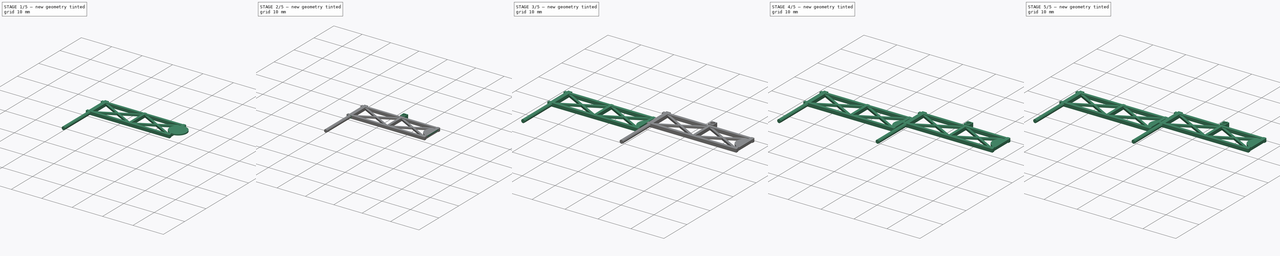
[diagram: build sequence overview — one tinted view per stage of 5, left to right]
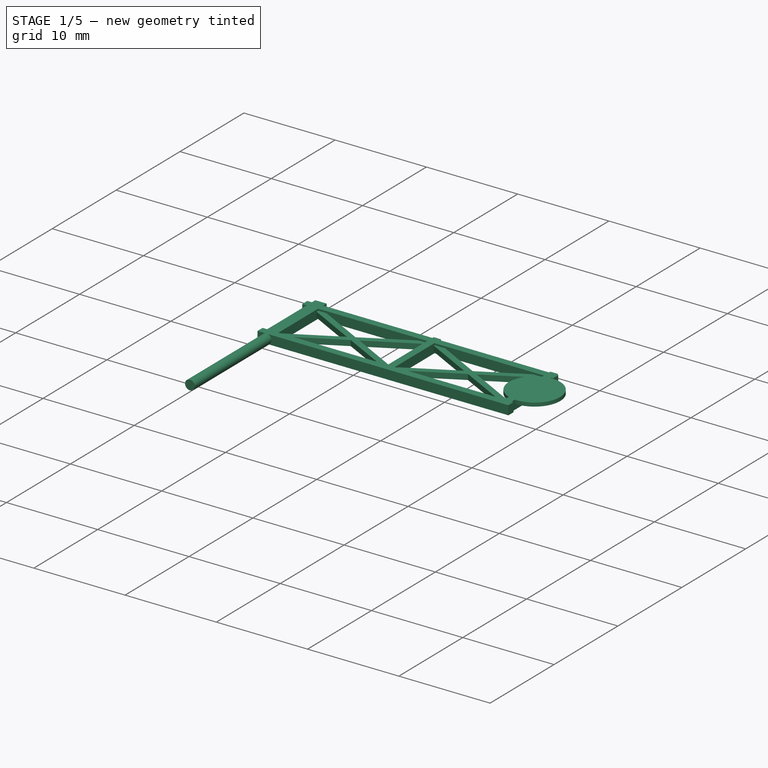
[diagram: stage 1 of 5 — iso view after this stage's code; geometry added in this stage tinted green]
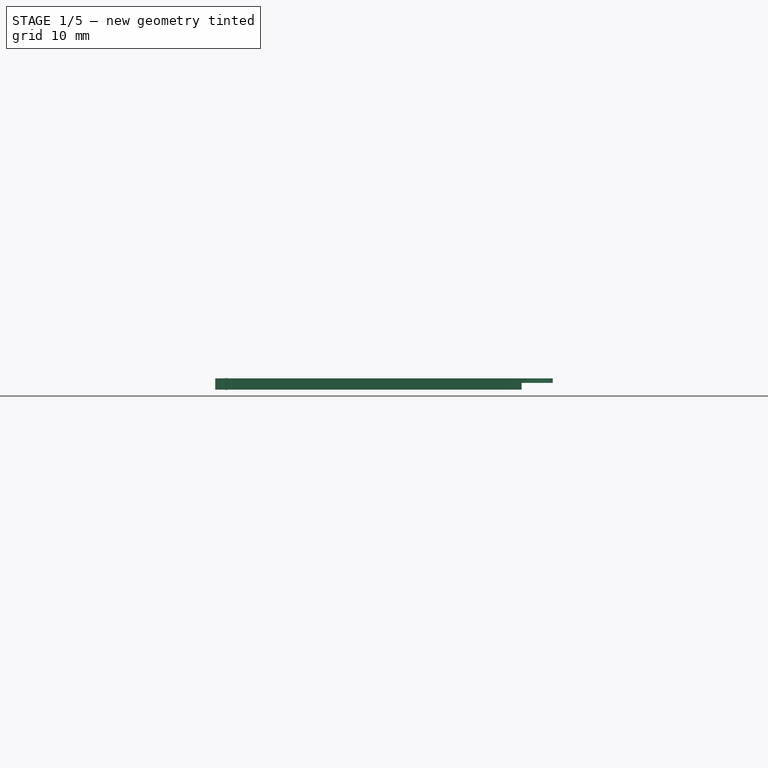
[diagram: stage 1 of 5 — front view after this stage's code; geometry added in this stage tinted green]
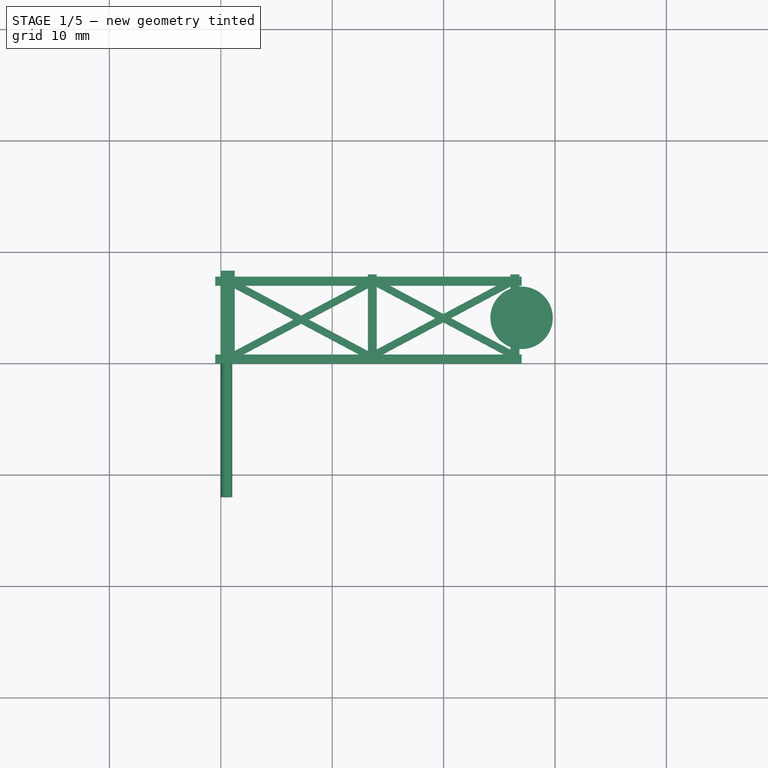
[diagram: stage 1 of 5 — top view after this stage's code; geometry added in this stage tinted green]
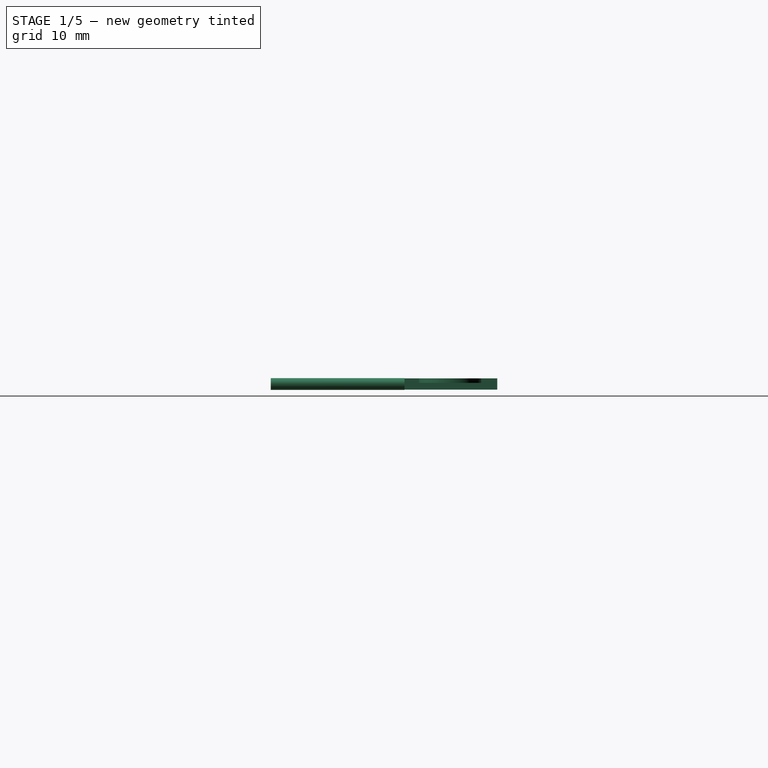
[diagram: stage 1 of 5 — right view after this stage's code; geometry added in this stage tinted green]
FCSTD DOCUMENT  (FreeCAD 0.18R16131 (Git))
Label: Level crossing gates v2 n gauge
License: All rights reserved
LicenseURL: http://en.wikipedia.org/wiki/All_rights_reserved
objects: PartDesign::AdditiveBox×22, PartDesign::LinearPattern×12, PartDesign::AdditiveCylinder×8, Sketcher::SketchObject×4, PartDesign::Pad×4, PartDesign::SubtractiveCylinder×4, PartDesign::SubtractiveBox×4, PartDesign::Body×4, PartDesign::AdditiveSphere×2
note: 108 computed .brp shape members not serialized (recipe doc carries the construction recipe); baked Part::Feature solids carry a one-line shape summary decoded from their .brp

FEATURE [PartDesign::Body] Body002
  Group = -> [Sketch002,Pad002,Box014,LinearPattern006,Box018,Box013,Box017,LinearPattern007,Box015,LinearPattern008,Cylinder006,Cylinder007,Cylinder008,Box016]
  Origin = -> Origin002
  Placement = pos=(30,-20,1) rot=(0,1,0;3.14159rad)
  Tip = -> Box016
FEATURE [Sketcher::SketchObject] Sketch003
  MapMode = 5
  Support = -> [XY_Plane003]
  sketch-geometry (4):
    g0: LineSegment StartX=0 StartY=0 StartZ=0 EndX=1.25 EndY=0 EndZ=0
    g1: LineSegment StartX=1.25 StartY=0 StartZ=0 EndX=1.25 EndY=8.33 EndZ=0
    g2: LineSegment StartX=1.25 StartY=8.33 StartZ=0 EndX=0 EndY=8.33 EndZ=0
    g3: LineSegment StartX=0 StartY=8.33 StartZ=0 EndX=0 EndY=0 EndZ=0
  constraints (11):
    c: Coincident(g0,g1)
    c: Coincident(g1,g2)
    c: Coincident(g2,g3)
    c: Coincident(g3,g0)
    c: Horizontal(g0)
    c: Horizontal(g2)
    c: Vertical(g1)
    c: Vertical(g3)
    c: Coincident(g0,g-1)
    c: DistanceY(g3,g3) = 8.33
    c: DistanceX(g0,g0) = 1.25
FEATURE [PartDesign::Pad] Pad003
  Length = 1
  Length2 = 100
  Profile = -> Sketch003
  Type = 0
FEATURE [PartDesign::AdditiveBox] Box019
  AttacherType = Attacher::AttachEngine3D
  AttachmentOffset = pos=(-0.5,0,0) rot=(0,0,1;0rad)
  BaseFeature = -> Pad003
  Height = 1
  Length = 27.5
  MapMode = 5
  Placement = pos=(-0.5,0,0) rot=(0,0,1;0rad)
  Support = -> [XY_Plane003]
  Width = 0.8
FEATURE [PartDesign::LinearPattern] LinearPattern009
  BaseFeature = -> Box019
  Direction = -> Y_Axis003
  Length = 7
  Occurrences = 2
  Originals = -> [Box019]
  Placement = pos=(-0.5,0,0) rot=(0,0,1;0rad)
FEATURE [PartDesign::AdditiveBox] Box022
  AttacherType = Attacher::AttachEngine3D
  AttachmentOffset = pos=(13.2,0,0) rot=(0,0,1;0rad)
  BaseFeature = -> LinearPattern009
  Height = 1
  Length = 0.8
  MapMode = 5
  Placement = pos=(13.2,0,0) rot=(0,0,1;0rad)
  Support = -> [XY_Plane003]
  Width = 8
FEATURE [PartDesign::AdditiveBox] Box021
  AttacherType = Attacher::AttachEngine3D
  AttachmentOffset = pos=(26,0,0) rot=(0,0,1;0rad)
  BaseFeature = -> Box022
  Height = 1
  Length = 0.8
  MapMode = 5
  Placement = pos=(26,0,0) rot=(0,0,1;0rad)
  Support = -> [XY_Plane003]
  Width = 8
FEATURE [PartDesign::AdditiveBox] Box020
  AttacherType = Attacher::AttachEngine3D
  AttachmentOffset = pos=(1,1,0.2) rot=(0,0,-1;1.0821rad)
  BaseFeature = -> Box021
  Height = 0.6
  Length = 0.65
  MapMode = 5
  Placement = pos=(1,1,0.2) rot=(0,0,-1;1.0821rad)
  Support = -> [XY_Plane003]
  Width = 14
FEATURE [PartDesign::LinearPattern] LinearPattern011
  BaseFeature = -> Box020
  Direction = -> X_Axis003
  Length = 12.5
  Occurrences = 2
  Originals = -> [Box020]
  Placement = pos=(1,1,0.2) rot=(0,0,-1;1.0821rad)
FEATURE [PartDesign::AdditiveBox] Box023
  AttacherType = Attacher::AttachEngine3D
  AttachmentOffset = pos=(13,0.5,0.2) rot=(0,0,1;1.0821rad)
  BaseFeature = -> LinearPattern011
  Height = 0.6
  Length = 0.65
  MapMode = 5
  Placement = pos=(13,0.5,0.2) rot=(0,0,1;1.0821rad)
  Support = -> [XY_Plane003]
  Width = 14
FEATURE [PartDesign::LinearPattern] LinearPattern010
  BaseFeature = -> Box023
  Direction = -> X_Axis003
  Length = 13
  Occurrences = 2
  Originals = -> [Box023]
  Placement = pos=(13,0.5,0.2) rot=(0,0,1;1.0821rad)
FEATURE [PartDesign::AdditiveCylinder] Cylinder010
  Angle = 360
  AttacherType = Attacher::AttachEngine3D
  AttachmentOffset = pos=(0.5,0.5,0) rot=(0,0,1;0rad)
  BaseFeature = -> LinearPattern010
  Height = 12
  MapMode = 5
  Placement = pos=(0.5,-1e-16,0.5) rot=(1,0,0;1.5708rad)
  Radius = 0.53
  Support = -> [XZ_Plane003]
FEATURE [PartDesign::AdditiveCylinder] Cylinder009
  Angle = 360
  AttacherType = Attacher::AttachEngine3D
  AttachmentOffset = pos=(27,4.1,0.6) rot=(0,0,1;0rad)
  BaseFeature = -> Cylinder010
  Height = 0.4
  MapMode = 5
  Placement = pos=(27,4.1,0.6) rot=(0,0,1;0rad)
  Radius = 2.8
  Support = -> [XY_Plane003]
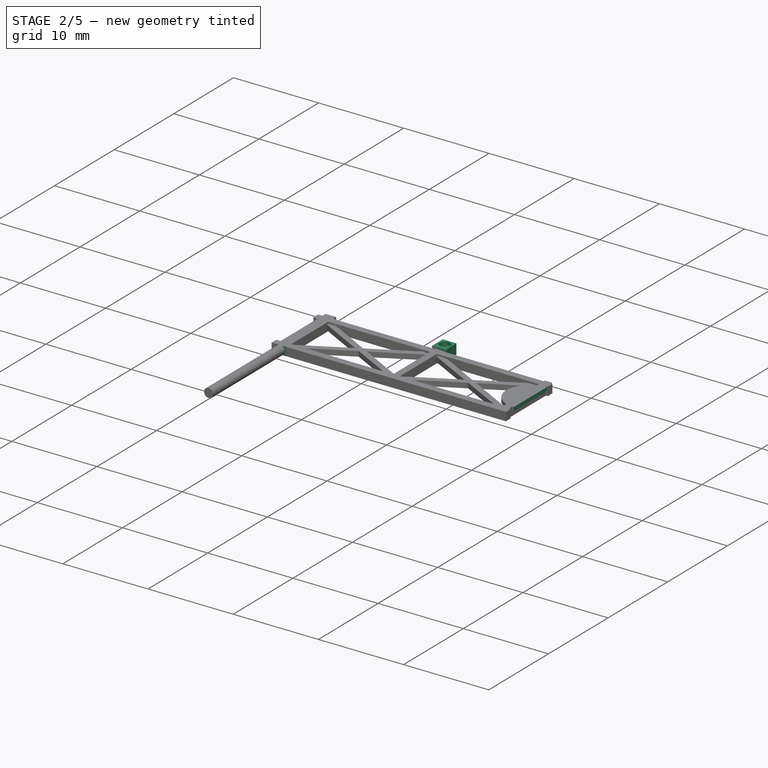
[diagram: stage 2 of 5 — iso view after this stage's code; geometry added in this stage tinted green]
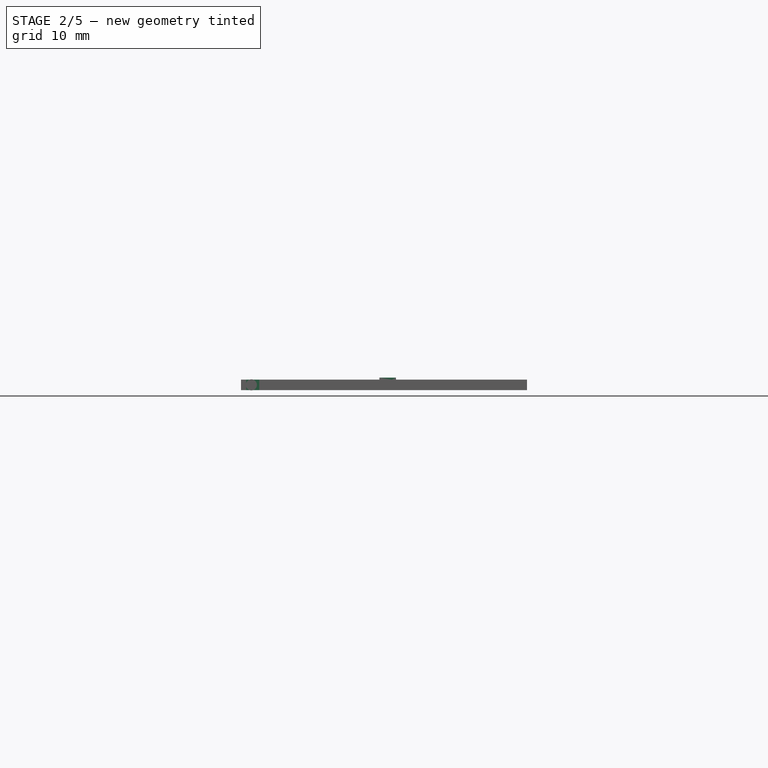
[diagram: stage 2 of 5 — front view after this stage's code; geometry added in this stage tinted green]
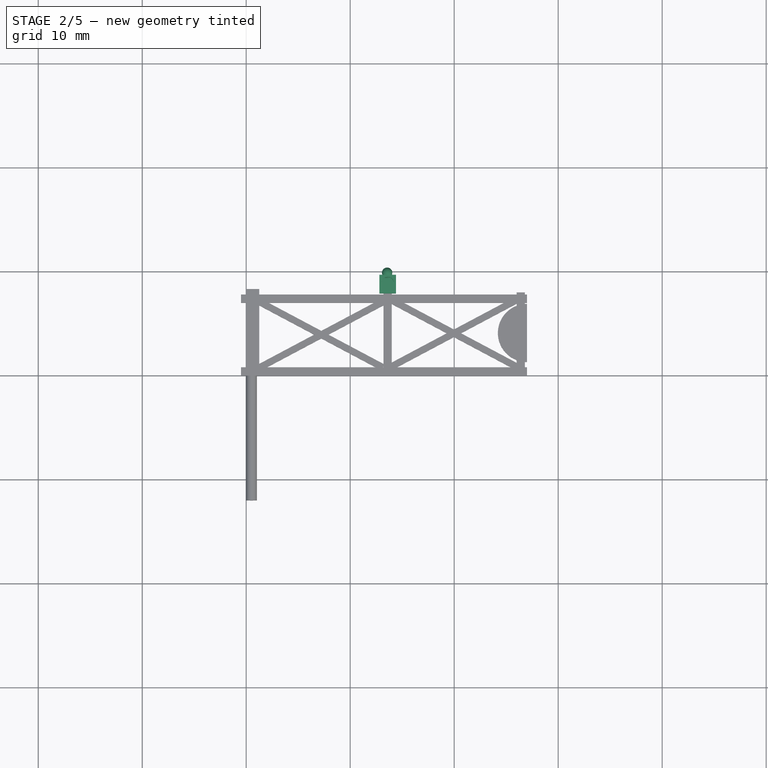
[diagram: stage 2 of 5 — top view after this stage's code; geometry added in this stage tinted green]
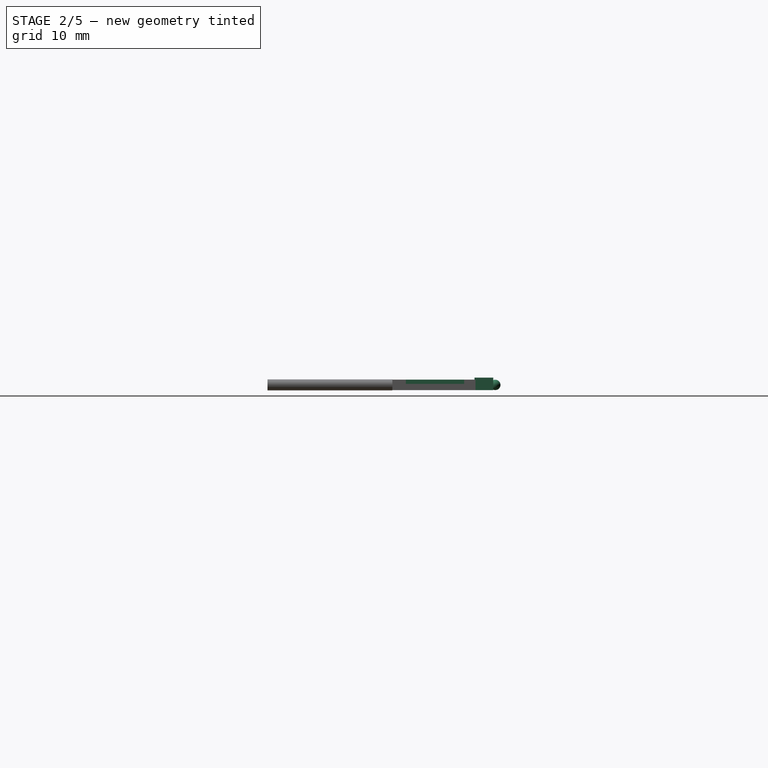
[diagram: stage 2 of 5 — right view after this stage's code; geometry added in this stage tinted green]
FEATURE [PartDesign::Body] Body001
  Group = -> [Sketch001,Pad001,Box007,LinearPattern003,Box010,Box009,Box008,LinearPattern005,Box011,LinearPattern004,Cylinder004,Cylinder003,Cylinder005,Box012]
  Origin = -> Origin001
  Placement = pos=(30,4,1) rot=(0,1,0;3.14159rad)
  Tip = -> Box012
FEATURE [Sketcher::SketchObject] Sketch002
  MapMode = 5
  Support = -> [XY_Plane002]
  sketch-geometry (4):
    g0: LineSegment StartX=0 StartY=0 StartZ=0 EndX=1.25 EndY=0 EndZ=0
    g1: LineSegment StartX=1.25 StartY=0 StartZ=0 EndX=1.25 EndY=8.33 EndZ=0
    g2: LineSegment StartX=1.25 StartY=8.33 StartZ=0 EndX=0 EndY=8.33 EndZ=0
    g3: LineSegment StartX=0 StartY=8.33 StartZ=0 EndX=0 EndY=0 EndZ=0
  constraints (11):
    c: Coincident(g0,g1)
    c: Coincident(g1,g2)
    c: Coincident(g2,g3)
    c: Coincident(g3,g0)
    c: Horizontal(g0)
    c: Horizontal(g2)
    c: Vertical(g1)
    c: Vertical(g3)
    c: Coincident(g0,g-1)
    c: DistanceY(g3,g3) = 8.33
    c: DistanceX(g0,g0) = 1.25
FEATURE [PartDesign::Pad] Pad002
  Length = 1
  Length2 = 100
  Profile = -> Sketch002
  Type = 0
FEATURE [PartDesign::AdditiveBox] Box014
  AttacherType = Attacher::AttachEngine3D
  AttachmentOffset = pos=(-0.5,0,0) rot=(0,0,1;0rad)
  BaseFeature = -> Pad002
  Height = 1
  Length = 27.5
  MapMode = 5
  Placement = pos=(-0.5,0,0) rot=(0,0,1;0rad)
  Support = -> [XY_Plane002]
  Width = 0.8
FEATURE [PartDesign::LinearPattern] LinearPattern006
  BaseFeature = -> Box014
  Direction = -> Y_Axis002
  Length = 7
  Occurrences = 2
  Originals = -> [Box014]
  Placement = pos=(-0.5,0,0) rot=(0,0,1;0rad)
FEATURE [PartDesign::AdditiveBox] Box018
  AttacherType = Attacher::AttachEngine3D
  AttachmentOffset = pos=(13.2,0,0) rot=(0,0,1;0rad)
  BaseFeature = -> LinearPattern006
  Height = 1
  Length = 0.8
  MapMode = 5
  Placement = pos=(13.2,0,0) rot=(0,0,1;0rad)
  Support = -> [XY_Plane002]
  Width = 8
FEATURE [PartDesign::AdditiveBox] Box013
  AttacherType = Attacher::AttachEngine3D
  AttachmentOffset = pos=(26,0,0) rot=(0,0,1;0rad)
  BaseFeature = -> Box018
  Height = 1
  Length = 0.8
  MapMode = 5
  Placement = pos=(26,0,0) rot=(0,0,1;0rad)
  Support = -> [XY_Plane002]
  Width = 8
FEATURE [PartDesign::AdditiveBox] Box017
  AttacherType = Attacher::AttachEngine3D
  AttachmentOffset = pos=(1,1,0.2) rot=(0,0,-1;1.0821rad)
  BaseFeature = -> Box013
  Height = 0.6
  Length = 0.65
  MapMode = 5
  Placement = pos=(1,1,0.2) rot=(0,0,-1;1.0821rad)
  Support = -> [XY_Plane002]
  Width = 14
FEATURE [PartDesign::LinearPattern] LinearPattern007
  BaseFeature = -> Box017
  Direction = -> X_Axis002
  Length = 12.5
  Occurrences = 2
  Originals = -> [Box017]
  Placement = pos=(1,1,0.2) rot=(0,0,-1;1.0821rad)
FEATURE [PartDesign::AdditiveBox] Box025
  AttacherType = Attacher::AttachEngine3D
  AttachmentOffset = pos=(12.8,7.9,0) rot=(0,0,1;0rad)
  BaseFeature = -> Cylinder009
  Height = 1.2
  Length = 1.6
  MapMode = 5
  Placement = pos=(12.8,7.9,0) rot=(0,0,1;0rad)
  Support = -> [XY_Plane003]
  Width = 1.8
FEATURE [PartDesign::SubtractiveCylinder] Cylinder011
  Angle = 360
  AttacherType = Attacher::AttachEngine3D
  AttachmentOffset = pos=(0.8,1,-0.5) rot=(0,0,1;0rad)
  BaseFeature = -> Box025
  Height = 2
  MapMode = 5
  Placement = pos=(13.6,8.9,0.5) rot=(0,0,1;0rad)
  Radius = 0.6
  Support = -> [Box025]
FEATURE [PartDesign::SubtractiveBox] Box024
  AttacherType = Attacher::AttachEngine3D
  AttachmentOffset = pos=(27,1,0) rot=(0,0,1;0rad)
  BaseFeature = -> Cylinder011
  Height = 1
  Length = 4
  MapMode = 5
  Placement = pos=(27,1,0) rot=(0,0,1;0rad)
  Support = -> [XY_Plane003]
  Width = 6
FEATURE [PartDesign::AdditiveSphere] Sphere001
  Angle1 = -90
  Angle2 = 90
  Angle3 = 360
  AttacherType = Attacher::AttachEngine3D
  AttachmentOffset = pos=(13.55,9.9,0.5) rot=(0,0,1;0rad)
  BaseFeature = -> Box024
  MapMode = 2
  Placement = pos=(13.55,9.9,0.5) rot=(0,0,1;0rad)
  Radius = 0.5
  Support = -> [X_Axis003]
FEATURE [PartDesign::Body] Body003
  Group = -> [Sketch003,Pad003,Box019,LinearPattern009,Box022,Box021,Box020,LinearPattern011,Box023,LinearPattern010,Cylinder010,Cylinder009,Box025,Cylinder011,Box024,Sphere001]
  Origin = -> Origin003
  Placement = pos=(0,-24,0) rot=(0,0,1;0rad)
  Tip = -> Sphere001
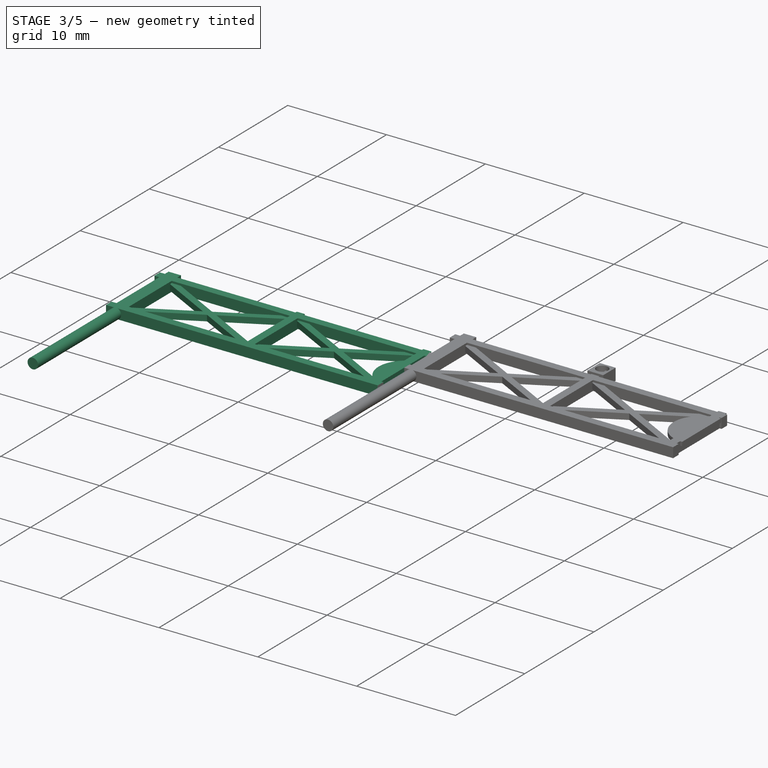
[diagram: stage 3 of 5 — iso view after this stage's code; geometry added in this stage tinted green]
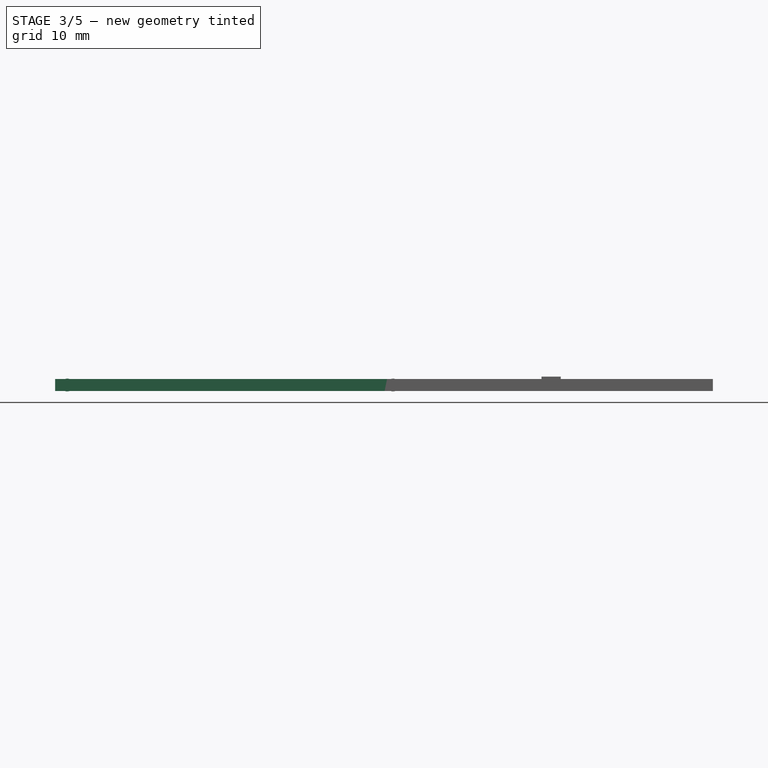
[diagram: stage 3 of 5 — front view after this stage's code; geometry added in this stage tinted green]
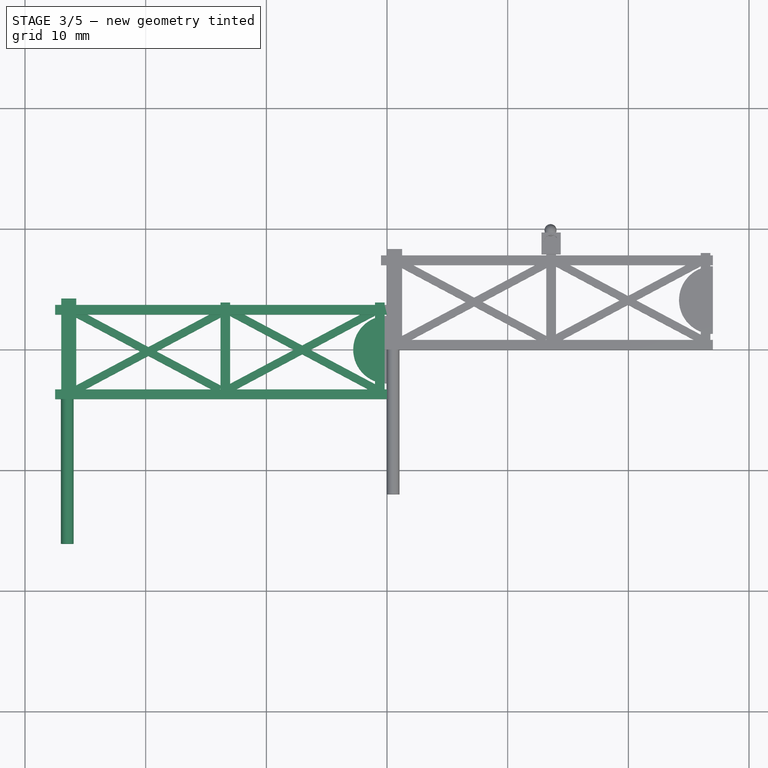
[diagram: stage 3 of 5 — top view after this stage's code; geometry added in this stage tinted green]
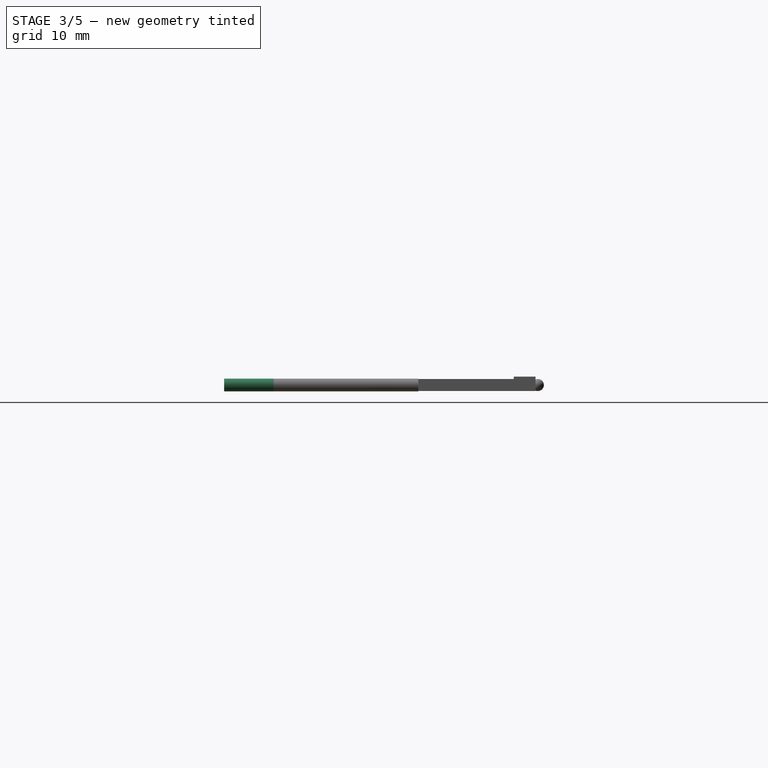
[diagram: stage 3 of 5 — right view after this stage's code; geometry added in this stage tinted green]
FEATURE [PartDesign::Body] Body
  Group = -> [Sketch,Pad,Box,LinearPattern,Box001,Box002,Box003,LinearPattern001,Box004,LinearPattern002,Cylinder,Cylinder001,Box005,Cylinder002,Box006,Sphere]
  Origin = -> Origin
  Tip = -> Sphere
FEATURE [Sketcher::SketchObject] Sketch001
  MapMode = 5
  Support = -> [XY_Plane001]
  sketch-geometry (4):
    g0: LineSegment StartX=0 StartY=0 StartZ=0 EndX=1.25 EndY=0 EndZ=0
    g1: LineSegment StartX=1.25 StartY=0 StartZ=0 EndX=1.25 EndY=8.33 EndZ=0
    g2: LineSegment StartX=1.25 StartY=8.33 StartZ=0 EndX=0 EndY=8.33 EndZ=0
    g3: LineSegment StartX=0 StartY=8.33 StartZ=0 EndX=0 EndY=0 EndZ=0
  constraints (11):
    c: Coincident(g0,g1)
    c: Coincident(g1,g2)
    c: Coincident(g2,g3)
    c: Coincident(g3,g0)
    c: Horizontal(g0)
    c: Horizontal(g2)
    c: Vertical(g1)
    c: Vertical(g3)
    c: Coincident(g0,g-1)
    c: DistanceY(g3,g3) = 8.33
    c: DistanceX(g0,g0) = 1.25
FEATURE [PartDesign::Pad] Pad001
  Length = 1
  Length2 = 100
  Profile = -> Sketch001
  Type = 0
FEATURE [PartDesign::AdditiveBox] Box007
  AttacherType = Attacher::AttachEngine3D
  AttachmentOffset = pos=(-0.5,0,0) rot=(0,0,1;0rad)
  BaseFeature = -> Pad001
  Height = 1
  Length = 27.5
  MapMode = 5
  Placement = pos=(-0.5,0,0) rot=(0,0,1;0rad)
  Support = -> [XY_Plane001]
  Width = 0.8
FEATURE [PartDesign::LinearPattern] LinearPattern003
  BaseFeature = -> Box007
  Direction = -> Y_Axis001
  Length = 7
  Occurrences = 2
  Originals = -> [Box007]
  Placement = pos=(-0.5,0,0) rot=(0,0,1;0rad)
FEATURE [PartDesign::AdditiveBox] Box010
  AttacherType = Attacher::AttachEngine3D
  AttachmentOffset = pos=(13.2,0,0) rot=(0,0,1;0rad)
  BaseFeature = -> LinearPattern003
  Height = 1
  Length = 0.8
  MapMode = 5
  Placement = pos=(13.2,0,0) rot=(0,0,1;0rad)
  Support = -> [XY_Plane001]
  Width = 8
FEATURE [PartDesign::AdditiveBox] Box009
  AttacherType = Attacher::AttachEngine3D
  AttachmentOffset = pos=(26,0,0) rot=(0,0,1;0rad)
  BaseFeature = -> Box010
  Height = 1
  Length = 0.8
  MapMode = 5
  Placement = pos=(26,0,0) rot=(0,0,1;0rad)
  Support = -> [XY_Plane001]
  Width = 8
FEATURE [PartDesign::AdditiveBox] Box008
  AttacherType = Attacher::AttachEngine3D
  AttachmentOffset = pos=(1,1,0.2) rot=(0,0,-1;1.0821rad)
  BaseFeature = -> Box009
  Height = 0.6
  Length = 0.65
  MapMode = 5
  Placement = pos=(1,1,0.2) rot=(0,0,-1;1.0821rad)
  Support = -> [XY_Plane001]
  Width = 14
FEATURE [PartDesign::AdditiveBox] Box015
  AttacherType = Attacher::AttachEngine3D
  AttachmentOffset = pos=(13,0.5,0.2) rot=(0,0,1;1.0821rad)
  BaseFeature = -> LinearPattern007
  Height = 0.6
  Length = 0.65
  MapMode = 5
  Placement = pos=(13,0.5,0.2) rot=(0,0,1;1.0821rad)
  Support = -> [XY_Plane002]
  Width = 14
FEATURE [PartDesign::LinearPattern] LinearPattern008
  BaseFeature = -> Box015
  Direction = -> X_Axis002
  Length = 13
  Occurrences = 2
  Originals = -> [Box015]
  Placement = pos=(13,0.5,0.2) rot=(0,0,1;1.0821rad)
FEATURE [PartDesign::AdditiveCylinder] Cylinder006
  Angle = 360
  AttacherType = Attacher::AttachEngine3D
  AttachmentOffset = pos=(0.5,0.5,0) rot=(0,0,1;0rad)
  BaseFeature = -> LinearPattern008
  Height = 12
  MapMode = 5
  Placement = pos=(0.5,-1e-16,0.5) rot=(1,0,0;1.5708rad)
  Radius = 0.53
  Support = -> [XZ_Plane002]
FEATURE [PartDesign::AdditiveCylinder] Cylinder007
  Angle = 360
  AttacherType = Attacher::AttachEngine3D
  AttachmentOffset = pos=(27,4.1,0) rot=(0,0,1;0rad)
  BaseFeature = -> Cylinder006
  Height = 0.4
  MapMode = 5
  Placement = pos=(27,4.1,0) rot=(0,0,1;0rad)
  Radius = 2.8
  Support = -> [XY_Plane002]
FEATURE [PartDesign::SubtractiveCylinder] Cylinder008
  Angle = 360
  AttacherType = Attacher::AttachEngine3D
  AttachmentOffset = pos=(0.8,1,-0.5) rot=(0,0,1;0rad)
  BaseFeature = -> Cylinder007
  Height = 2
  MapMode = 5
  Placement = pos=(13.6,8.9,0.5) rot=(0,0,1;0rad)
  Radius = 0.6
FEATURE [PartDesign::SubtractiveBox] Box016
  AttacherType = Attacher::AttachEngine3D
  AttachmentOffset = pos=(0.2,-3,0) rot=(0,0,1;0rad)
  BaseFeature = -> Cylinder008
  Height = 1
  Length = 4.1
  MapMode = 5
  Placement = pos=(0.2,-3,0) rot=(0,0,1;0rad)
  Support = -> [XY_Plane002]
  Width = 6
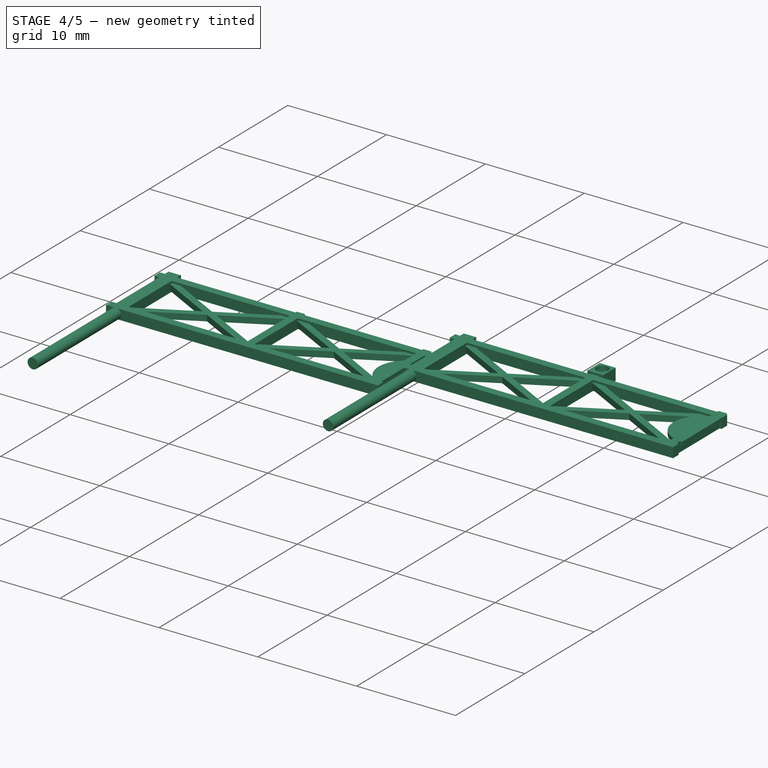
[diagram: stage 4 of 5 — iso view after this stage's code; geometry added in this stage tinted green]
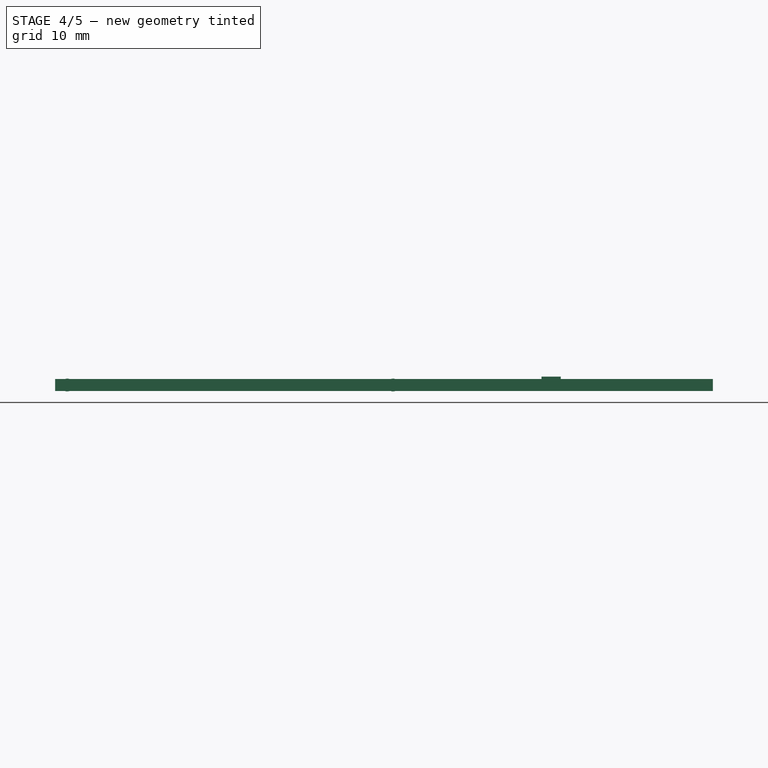
[diagram: stage 4 of 5 — front view after this stage's code; geometry added in this stage tinted green]
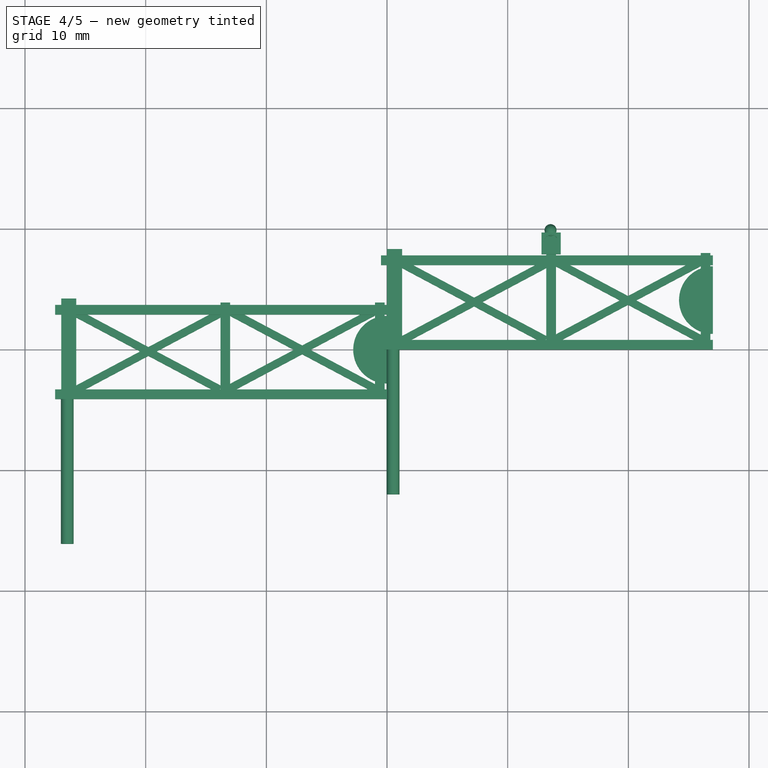
[diagram: stage 4 of 5 — top view after this stage's code; geometry added in this stage tinted green]
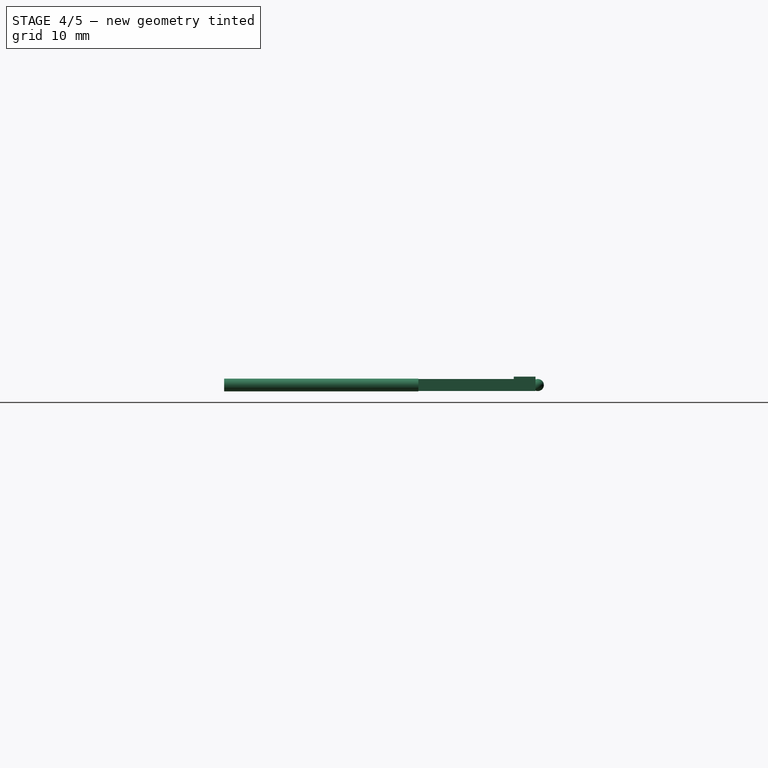
[diagram: stage 4 of 5 — right view after this stage's code; geometry added in this stage tinted green]
FEATURE [Sketcher::SketchObject] Sketch
  MapMode = 5
  Support = -> [XY_Plane]
  sketch-geometry (4):
    g0: LineSegment StartX=0 StartY=0 StartZ=0 EndX=1.25 EndY=0 EndZ=0
    g1: LineSegment StartX=1.25 StartY=0 StartZ=0 EndX=1.25 EndY=8.33 EndZ=0
    g2: LineSegment StartX=1.25 StartY=8.33 StartZ=0 EndX=0 EndY=8.33 EndZ=0
    g3: LineSegment StartX=0 StartY=8.33 StartZ=0 EndX=0 EndY=0 EndZ=0
  constraints (11):
    c: Coincident(g0,g1)
    c: Coincident(g1,g2)
    c: Coincident(g2,g3)
    c: Coincident(g3,g0)
    c: Horizontal(g0)
    c: Horizontal(g2)
    c: Vertical(g1)
    c: Vertical(g3)
    c: Coincident(g0,g-1)
    c: DistanceY(g3,g3) = 8.33
    c: DistanceX(g0,g0) = 1.25
FEATURE [PartDesign::Pad] Pad
  Length = 1
  Length2 = 100
  Profile = -> Sketch
  Type = 0
FEATURE [PartDesign::AdditiveBox] Box
  AttacherType = Attacher::AttachEngine3D
  AttachmentOffset = pos=(-0.5,0,0) rot=(0,0,1;0rad)
  BaseFeature = -> Pad
  Height = 1
  Length = 27.5
  MapMode = 5
  Placement = pos=(-0.5,0,0) rot=(0,0,1;0rad)
  Support = -> [XY_Plane]
  Width = 0.8
FEATURE [PartDesign::LinearPattern] LinearPattern
  BaseFeature = -> Box
  Direction = -> Y_Axis
  Length = 7
  Occurrences = 2
  Originals = -> [Box]
  Placement = pos=(-0.5,0,0) rot=(0,0,1;0rad)
FEATURE [PartDesign::AdditiveBox] Box001
  AttacherType = Attacher::AttachEngine3D
  AttachmentOffset = pos=(13.2,0,0) rot=(0,0,1;0rad)
  BaseFeature = -> LinearPattern
  Height = 1
  Length = 0.8
  MapMode = 5
  Placement = pos=(13.2,0,0) rot=(0,0,1;0rad)
  Support = -> [XY_Plane]
  Width = 8
FEATURE [PartDesign::LinearPattern] LinearPattern005
  BaseFeature = -> Box008
  Direction = -> X_Axis001
  Length = 12.5
  Occurrences = 2
  Originals = -> [Box008]
  Placement = pos=(1,1,0.2) rot=(0,0,-1;1.0821rad)
FEATURE [PartDesign::AdditiveBox] Box011
  AttacherType = Attacher::AttachEngine3D
  AttachmentOffset = pos=(13,0.5,0.2) rot=(0,0,1;1.0821rad)
  BaseFeature = -> LinearPattern005
  Height = 0.6
  Length = 0.65
  MapMode = 5
  Placement = pos=(13,0.5,0.2) rot=(0,0,1;1.0821rad)
  Support = -> [XY_Plane001]
  Width = 14
FEATURE [PartDesign::LinearPattern] LinearPattern004
  BaseFeature = -> Box011
  Direction = -> X_Axis001
  Length = 13
  Occurrences = 2
  Originals = -> [Box011]
  Placement = pos=(13,0.5,0.2) rot=(0,0,1;1.0821rad)
FEATURE [PartDesign::AdditiveCylinder] Cylinder004
  Angle = 360
  AttacherType = Attacher::AttachEngine3D
  AttachmentOffset = pos=(0.5,0.5,0) rot=(0,0,1;0rad)
  BaseFeature = -> LinearPattern004
  Height = 12
  MapMode = 5
  Placement = pos=(0.5,-1e-16,0.5) rot=(1,0,0;1.5708rad)
  Radius = 0.53
  Support = -> [XZ_Plane001]
FEATURE [PartDesign::AdditiveCylinder] Cylinder003
  Angle = 360
  AttacherType = Attacher::AttachEngine3D
  AttachmentOffset = pos=(27,4.1,0) rot=(0,0,1;0rad)
  BaseFeature = -> Cylinder004
  Height = 0.4
  MapMode = 5
  Placement = pos=(27,4.1,0) rot=(0,0,1;0rad)
  Radius = 2.8
  Support = -> [XY_Plane001]
FEATURE [PartDesign::SubtractiveCylinder] Cylinder005
  Angle = 360
  AttacherType = Attacher::AttachEngine3D
  AttachmentOffset = pos=(0.8,1,-0.5) rot=(0,0,1;0rad)
  BaseFeature = -> Cylinder003
  Height = 2
  MapMode = 5
  Placement = pos=(13.6,8.9,0.5) rot=(0,0,1;0rad)
  Radius = 0.6
FEATURE [PartDesign::SubtractiveBox] Box012
  AttacherType = Attacher::AttachEngine3D
  AttachmentOffset = pos=(0.2,-3,0) rot=(0,0,1;0rad)
  BaseFeature = -> Cylinder005
  Height = 1
  Length = 4.1
  MapMode = 5
  Placement = pos=(0.2,-3,0) rot=(0,0,1;0rad)
  Support = -> [XY_Plane001]
  Width = 6
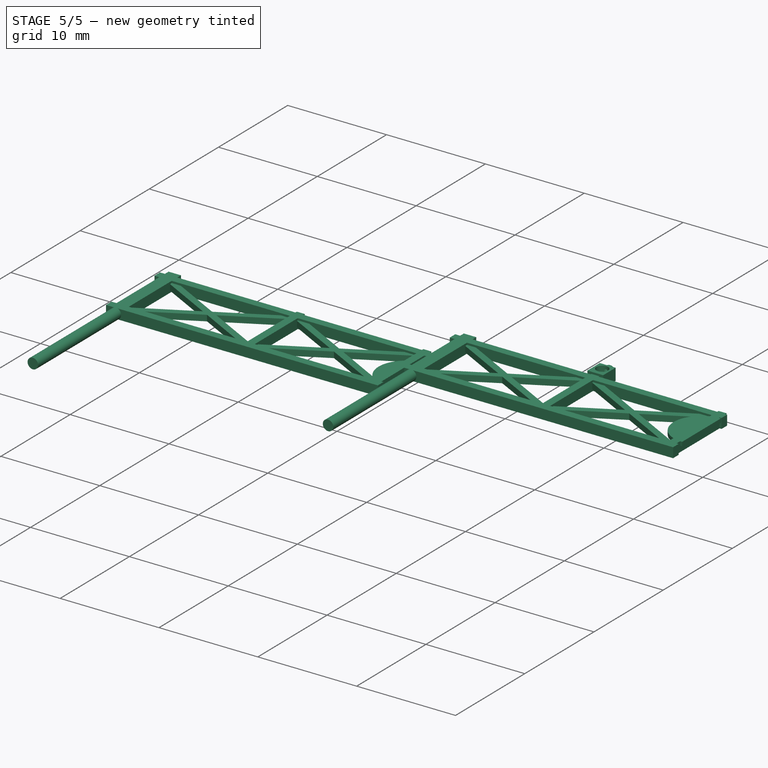
[diagram: stage 5 of 5 — iso view after this stage's code; geometry added in this stage tinted green]
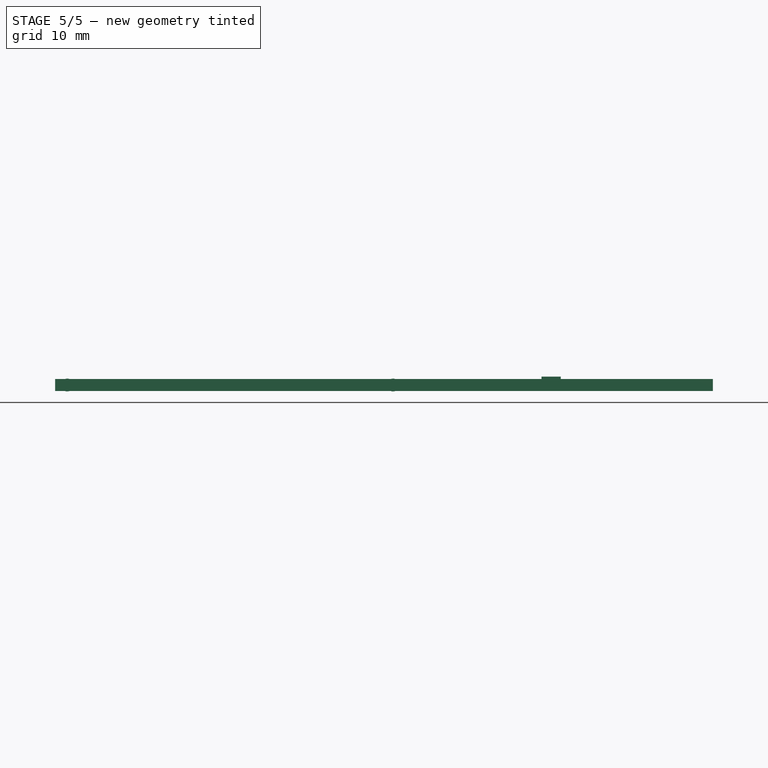
[diagram: stage 5 of 5 — front view after this stage's code; geometry added in this stage tinted green]
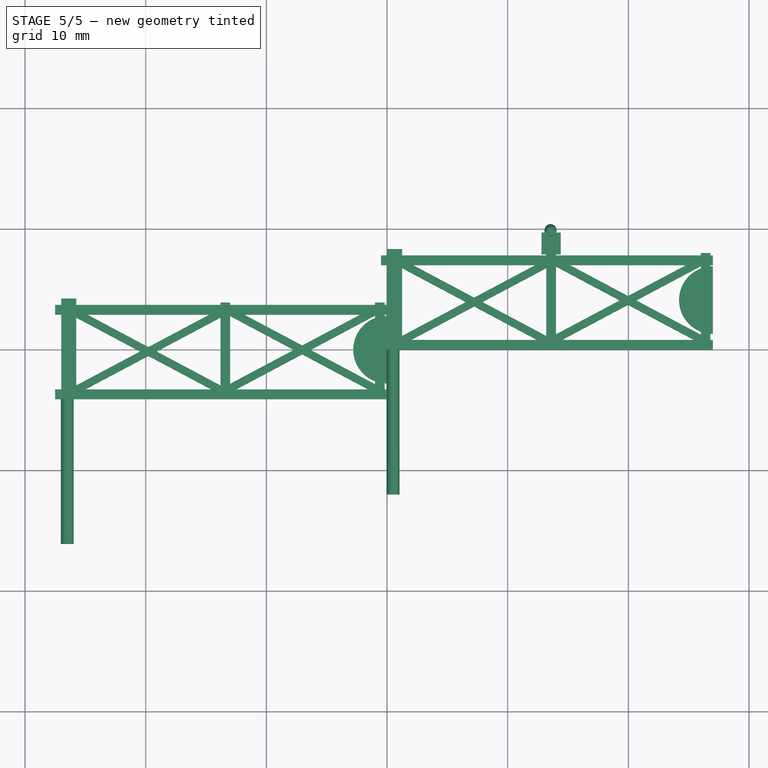
[diagram: stage 5 of 5 — top view after this stage's code; geometry added in this stage tinted green]
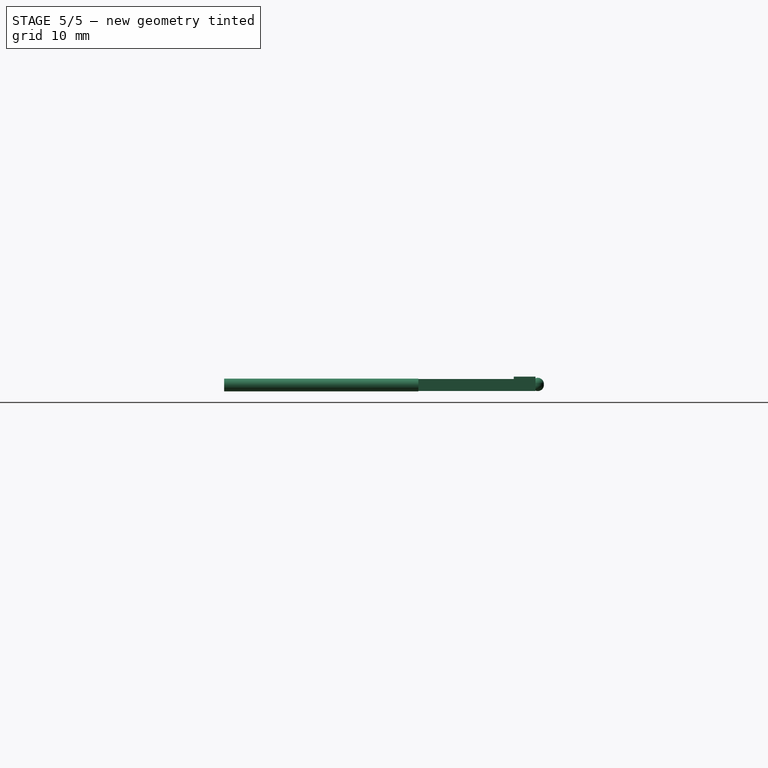
[diagram: stage 5 of 5 — right view after this stage's code; geometry added in this stage tinted green]
FEATURE [PartDesign::AdditiveBox] Box002
  AttacherType = Attacher::AttachEngine3D
  AttachmentOffset = pos=(26,0,0) rot=(0,0,1;0rad)
  BaseFeature = -> Box001
  Height = 1
  Length = 0.8
  MapMode = 5
  Placement = pos=(26,0,0) rot=(0,0,1;0rad)
  Support = -> [XY_Plane]
  Width = 8
FEATURE [PartDesign::AdditiveBox] Box003
  AttacherType = Attacher::AttachEngine3D
  AttachmentOffset = pos=(1,1,0.2) rot=(0,0,-1;1.0821rad)
  BaseFeature = -> Box002
  Height = 0.6
  Length = 0.65
  MapMode = 5
  Placement = pos=(1,1,0.2) rot=(0,0,-1;1.0821rad)
  Support = -> [XY_Plane]
  Width = 14
FEATURE [PartDesign::LinearPattern] LinearPattern001
  BaseFeature = -> Box003
  Direction = -> X_Axis
  Length = 12.5
  Occurrences = 2
  Originals = -> [Box003]
  Placement = pos=(1,1,0.2) rot=(0,0,-1;1.0821rad)
FEATURE [PartDesign::AdditiveBox] Box004
  AttacherType = Attacher::AttachEngine3D
  AttachmentOffset = pos=(13,0.5,0.2) rot=(0,0,1;1.0821rad)
  BaseFeature = -> LinearPattern001
  Height = 0.6
  Length = 0.65
  MapMode = 5
  Placement = pos=(13,0.5,0.2) rot=(0,0,1;1.0821rad)
  Support = -> [XY_Plane]
  Width = 14
FEATURE [PartDesign::LinearPattern] LinearPattern002
  BaseFeature = -> Box004
  Direction = -> X_Axis
  Length = 13
  Occurrences = 2
  Originals = -> [Box004]
  Placement = pos=(13,0.5,0.2) rot=(0,0,1;1.0821rad)
FEATURE [PartDesign::AdditiveCylinder] Cylinder
  Angle = 360
  AttacherType = Attacher::AttachEngine3D
  AttachmentOffset = pos=(0.5,0.5,0) rot=(0,0,1;0rad)
  BaseFeature = -> LinearPattern002
  Height = 12
  MapMode = 5
  Placement = pos=(0.5,-1e-16,0.5) rot=(1,0,0;1.5708rad)
  Radius = 0.53
  Support = -> [XZ_Plane]
FEATURE [PartDesign::AdditiveCylinder] Cylinder001
  Angle = 360
  AttacherType = Attacher::AttachEngine3D
  AttachmentOffset = pos=(27,4.1,0.6) rot=(0,0,1;0rad)
  BaseFeature = -> Cylinder
  Height = 0.4
  MapMode = 5
  Placement = pos=(27,4.1,0.6) rot=(0,0,1;0rad)
  Radius = 2.8
  Support = -> [XY_Plane]
FEATURE [PartDesign::AdditiveBox] Box005
  AttacherType = Attacher::AttachEngine3D
  AttachmentOffset = pos=(12.8,7.9,0) rot=(0,0,1;0rad)
  BaseFeature = -> Cylinder001
  Height = 1.2
  Length = 1.6
  MapMode = 5
  Placement = pos=(12.8,7.9,0) rot=(0,0,1;0rad)
  Support = -> [XY_Plane]
  Width = 1.8
FEATURE [PartDesign::SubtractiveCylinder] Cylinder002
  Angle = 360
  AttacherType = Attacher::AttachEngine3D
  AttachmentOffset = pos=(0.8,1,-0.5) rot=(0,0,1;0rad)
  BaseFeature = -> Box005
  Height = 2
  MapMode = 5
  Placement = pos=(13.6,8.9,0.5) rot=(0,0,1;0rad)
  Radius = 0.6
  Support = -> [Box005]
FEATURE [PartDesign::SubtractiveBox] Box006
  AttacherType = Attacher::AttachEngine3D
  AttachmentOffset = pos=(27,1,0) rot=(0,0,1;0rad)
  BaseFeature = -> Cylinder002
  Height = 1
  Length = 4
  MapMode = 5
  Placement = pos=(27,1,0) rot=(0,0,1;0rad)
  Support = -> [XY_Plane]
  Width = 6
FEATURE [PartDesign::AdditiveSphere] Sphere
  Angle1 = -90
  Angle2 = 90
  Angle3 = 360
  AttacherType = Attacher::AttachEngine3D
  AttachmentOffset = pos=(13.55,9.9,0.6) rot=(0,0,1;0rad)
  BaseFeature = -> Box006
  MapMode = 2
  Placement = pos=(13.55,9.9,0.6) rot=(0,0,1;0rad)
  Radius = 0.5
  Support = -> [X_Axis]
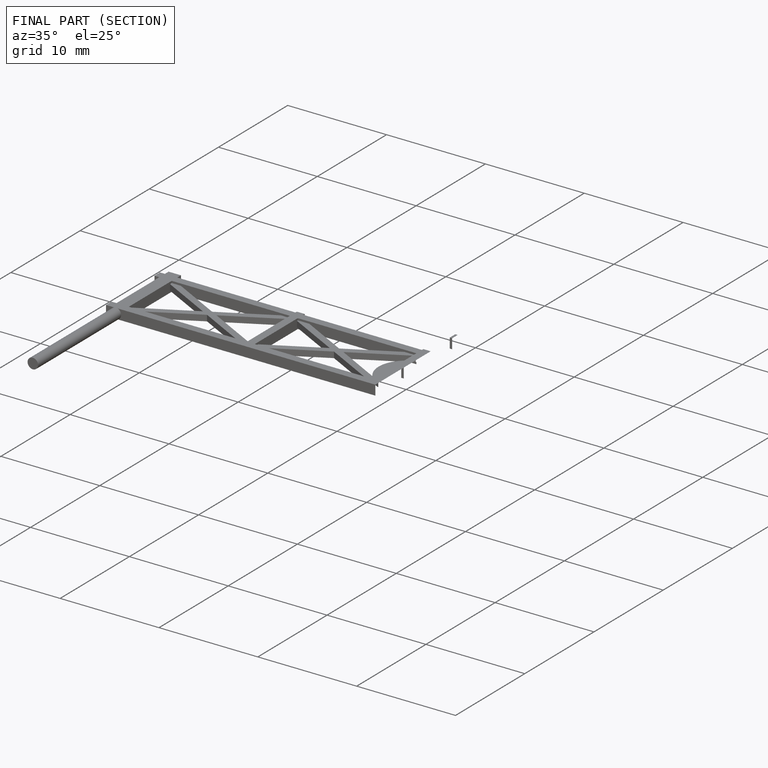
[diagram: finished part — half-section view (interior)]
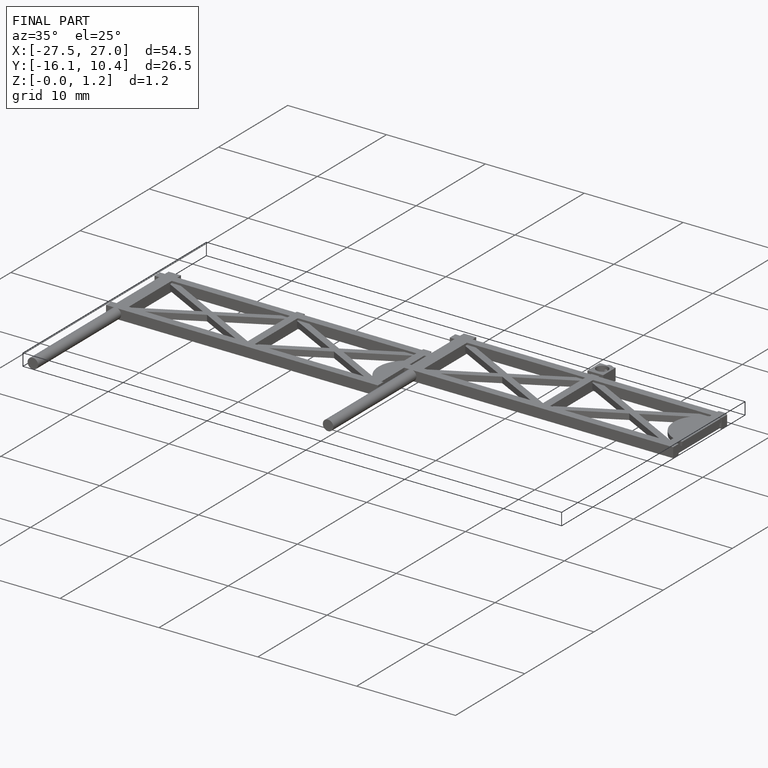
[diagram: finished part — iso view with bounding-box wireframe]
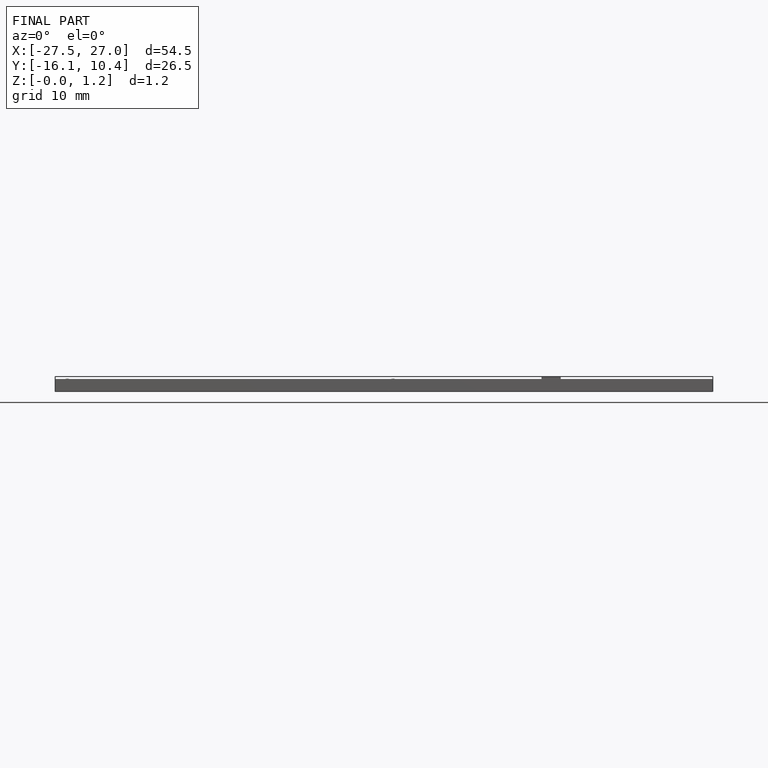
[diagram: finished part — front view with bounding-box wireframe]
